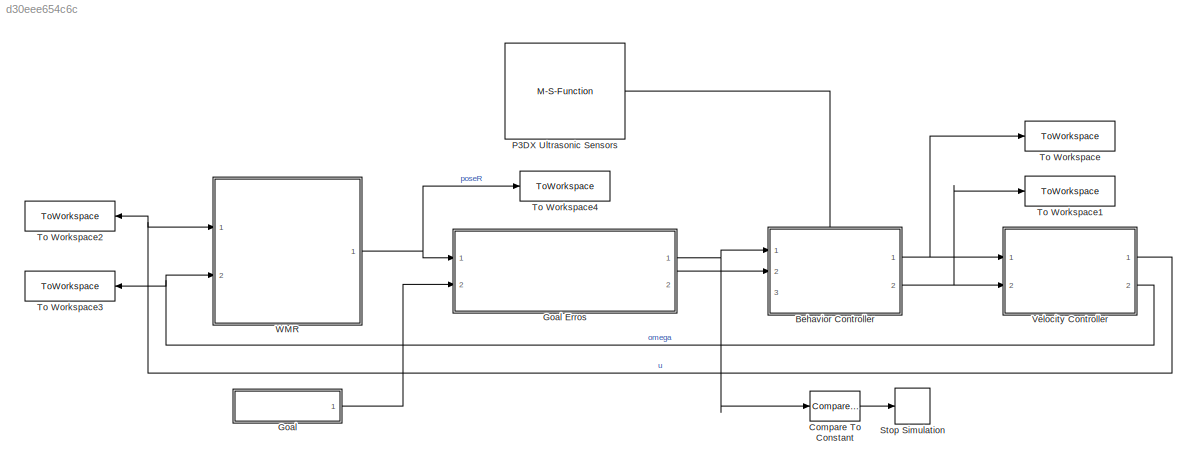
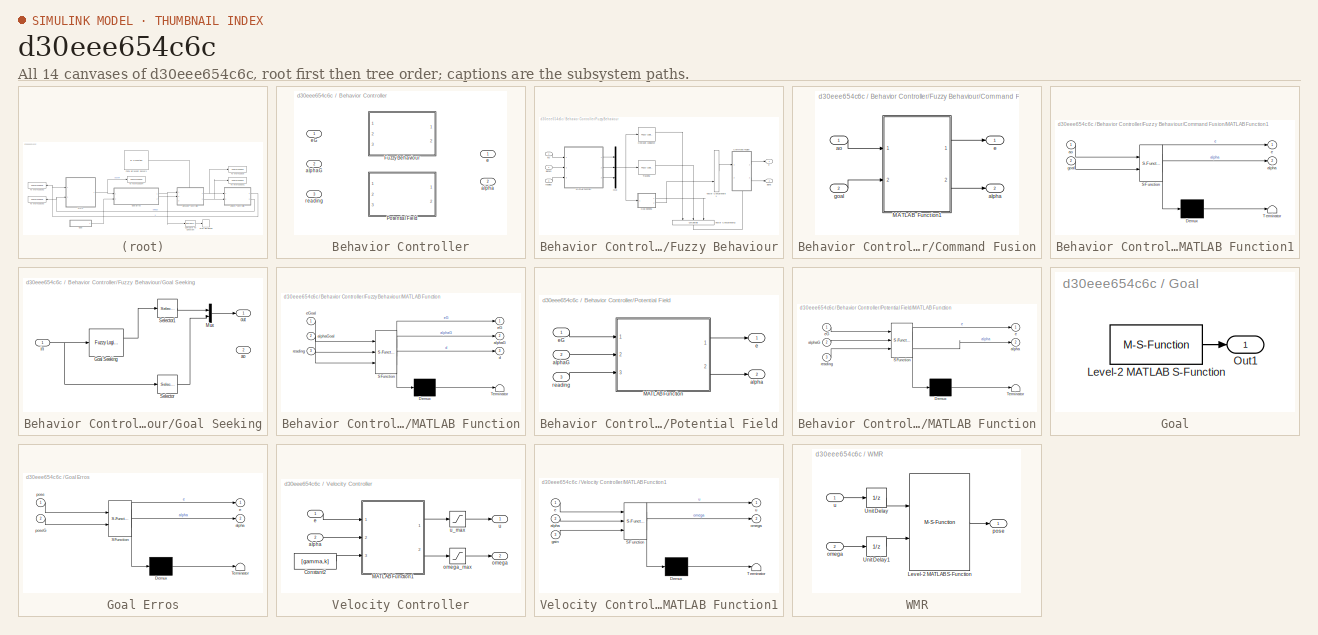
[diagram: thumbnail index - all 14 canvases of the model, root first then tree order]
MODEL slx_d30eee654c6c
KIND model
CONFIG AbsTol = auto
CONFIG EnableMultiTasking = off
CONFIG FixedStep = 5e-3
CONFIG MaxStep = auto
CONFIG MinStep = auto
CONFIG RelTol = 1e-3
CONFIG SampleTimeConstraint = Unconstrained
CONFIG SolverName = FixedStepDiscrete
CONFIG StartTime = 0.0
CONFIG StopTime = Inf
BLOCK [SubSystem] Behavior Controller
  PortSchema = {"entries":[{"content":{"sides":[{"content":{"connectorIds":["In1","In2"]},"type":"ConnectorPlacement.EquallySpacedRectSide","uuid":"3ac4bfbb-f67e-40e5-be56-837f7924ef98"},{"content":{"connectorIds":["Out1","Out2"],"side":"RIGHT"},"type":"ConnectorPlacement.EquallySpacedRectSide","uuid":"0946b3c7-0d10-45c4-bd05-6547f8b5d1ad"},{"content":{"connectorIds":["In3"],"side":"TOP"},"type":"ConnectorPlacem...<+258ch>
  Ports = [3, 2]
  RequestExecContextInheritance = off
  Variant = on
BLOCK [SubSystem] Behavior Controller/Fuzzy Behaviour
  PortSchema = {"entries":[{"content":{"sides":[{"content":{"connectorIds":["In1","In2"]},"type":"ConnectorPlacement.EquallySpacedRectSide","uuid":"06a7f3f5-19ad-4266-b822-3ab888d38f4d"},{"content":{"connectorIds":["Out1","Out2"],"side":"RIGHT"},"type":"ConnectorPlacement.EquallySpacedRectSide","uuid":"a9a64b0c-d306-4cfa-a00f-170269f42e3e"},{"content":{"connectorIds":["In3"],"side":"TOP"},"type":"ConnectorPlacem...<+258ch>
  Ports = [3, 2]
  RequestExecContextInheritance = off
  VariantControl = FUZZY
BLOCK [SubSystem] Behavior Controller/Fuzzy Behaviour/Command Fusion
  NameLocation = top
  PortSchema = {"entries":[{"content":{"sides":[{"content":{"connectorIds":["In1"]},"type":"ConnectorPlacement.EquallySpacedRectSide","uuid":"73fd97c8-3045-4cbb-bad3-62703d9c5625"},{"content":{"connectorIds":["Out1","Out2"],"side":"RIGHT"},"type":"ConnectorPlacement.EquallySpacedRectSide","uuid":"597553a6-e8ee-4dcc-95be-8e7ec85d134a"},{"content":{"connectorIds":[],"side":"TOP"},"type":"ConnectorPlacement.Equally...<+396ch>
  Ports = [2, 2]
  RequestExecContextInheritance = off
BLOCK [SubSystem] Behavior Controller/Fuzzy Behaviour/Command Fusion/MATLAB Function1
  ErrorFcn = Stateflow.Translate.translate
  PermitHierarchicalResolution = ExplicitOnly
  Ports = [2, 2]
  RequestExecContextInheritance = off
  SFBlockType = MATLAB Function
  TreatAsAtomicUnit = on
BLOCK [Demux] Behavior Controller/Fuzzy Behaviour/Command Fusion/MATLAB Function1/ Demux 
  Outputs = 1
  Ports = [1, 1]
BLOCK [S-Function] Behavior Controller/Fuzzy Behaviour/Command Fusion/MATLAB Function1/ SFunction 
  EnableBusSupport = on
  FunctionName = sf_sfun
  PortCounts = [2 3]
  Ports = [2, 3]
  SFcnIsStateOwnerBlock = off
  SFunctionDeploymentMode = off
  Tag = Stateflow S-Function 4
BLOCK [Terminator] Behavior Controller/Fuzzy Behaviour/Command Fusion/MATLAB Function1/ Terminator 
BLOCK [Outport] Behavior Controller/Fuzzy Behaviour/Command Fusion/MATLAB Function1/alpha
  Port = 2
BLOCK [Inport] Behavior Controller/Fuzzy Behaviour/Command Fusion/MATLAB Function1/ao
BLOCK [Outport] Behavior Controller/Fuzzy Behaviour/Command Fusion/MATLAB Function1/e
BLOCK [Inport] Behavior Controller/Fuzzy Behaviour/Command Fusion/MATLAB Function1/goal
  Port = 2
BLOCK [Outport] Behavior Controller/Fuzzy Behaviour/Command Fusion/alpha
  Port = 2
BLOCK [Inport] Behavior Controller/Fuzzy Behaviour/Command Fusion/ao
BLOCK [Outport] Behavior Controller/Fuzzy Behaviour/Command Fusion/e
BLOCK [Inport] Behavior Controller/Fuzzy Behaviour/Command Fusion/goal
  Port = 2
BLOCK [SubSystem] Behavior Controller/Fuzzy Behaviour/Goal Seeking
  Ports = [1, 2]
  RequestExecContextInheritance = off
BLOCK [Reference] Behavior Controller/Fuzzy Behaviour/Goal Seeking/Goal Seeking  REF=fuzblock/Fuzzy Logic   (lib defined in mdl_858b3b3e7478)
Controller
  Ports = [1, 2]
  SourceBlock = fuzblock/Fuzzy Logic \nController
  SourceProductBaseCode = FL
  SourceType = Fuzzy Inference System
BLOCK [Mux] Behavior Controller/Fuzzy Behaviour/Goal Seeking/Mux
  DisplayOption = bar
  Inputs = 2
  Ports = [2, 1]
BLOCK [Selector] Behavior Controller/Fuzzy Behaviour/Goal Seeking/Selector
  IndexOptions = Index vector (dialog)
  Indices = [2]
  InputPortWidth = 5
  OutputSizes = 1
  Ports = [1, 1]
BLOCK [Selector] Behavior Controller/Fuzzy Behaviour/Goal Seeking/Selector1
  IndexOptions = Index vector (dialog)
  Indices = [1]
  InputPortWidth = 2
  OutputSizes = 1
  Ports = [1, 1]
BLOCK [Outport] Behavior Controller/Fuzzy Behaviour/Goal Seeking/ao
  Port = 2
BLOCK [Inport] Behavior Controller/Fuzzy Behaviour/Goal Seeking/in
BLOCK [Outport] Behavior Controller/Fuzzy Behaviour/Goal Seeking/out
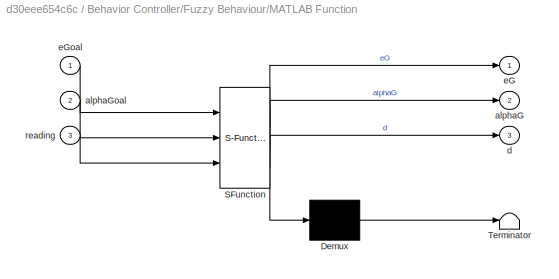
BLOCK [SubSystem] Behavior Controller/Fuzzy Behaviour/MATLAB Function
  ErrorFcn = Stateflow.Translate.translate
  PermitHierarchicalResolution = ExplicitOnly
  Ports = [3, 3]
  RequestExecContextInheritance = off
  SFBlockType = MATLAB Function
  TreatAsAtomicUnit = on
BLOCK [Demux] Behavior Controller/Fuzzy Behaviour/MATLAB Function/ Demux 
  Outputs = 1
  Ports = [1, 1]
BLOCK [S-Function] Behavior Controller/Fuzzy Behaviour/MATLAB Function/ SFunction 
  EnableBusSupport = on
  FunctionName = sf_sfun
  PortCounts = [3 4]
  Ports = [3, 4]
  SFcnIsStateOwnerBlock = off
  SFunctionDeploymentMode = off
  Tag = Stateflow S-Function 1
BLOCK [Terminator] Behavior Controller/Fuzzy Behaviour/MATLAB Function/ Terminator 
BLOCK [Outport] Behavior Controller/Fuzzy Behaviour/MATLAB Function/alphaG
  Port = 2
BLOCK [Inport] Behavior Controller/Fuzzy Behaviour/MATLAB Function/alphaGoal
  Port = 2
BLOCK [Outport] Behavior Controller/Fuzzy Behaviour/MATLAB Function/d
  Port = 3
BLOCK [Outport] Behavior Controller/Fuzzy Behaviour/MATLAB Function/eG
BLOCK [Inport] Behavior Controller/Fuzzy Behaviour/MATLAB Function/eGoal
BLOCK [Inport] Behavior Controller/Fuzzy Behaviour/MATLAB Function/reading
  Port = 3
BLOCK [Mux] Behavior Controller/Fuzzy Behaviour/Mux
  DisplayOption = bar
  Inputs = 3
  Ports = [3, 1]
BLOCK [Reference] Behavior Controller/Fuzzy Behaviour/Obstacle Avoidance  REF=fuzblock/Fuzzy Logic   (lib defined in mdl_858b3b3e7478)
Controller
  Ports = [1, 2]
  SourceBlock = fuzblock/Fuzzy Logic \nController
  SourceProductBaseCode = FL
  SourceType = Fuzzy Inference System
BLOCK [Reference] Behavior Controller/Fuzzy Behaviour/Tracking  REF=fuzblock/Fuzzy Logic   (lib defined in mdl_858b3b3e7478)
Controller
  Ports = [1, 2]
  SourceBlock = fuzblock/Fuzzy Logic \nController
  SourceProductBaseCode = FL
  SourceType = Fuzzy Inference System
BLOCK [Concatenate] Behavior Controller/Fuzzy Behaviour/Vector Concatenate1
  ConcatenateDimension = 2
  Mode = Multidimensional array
  NumInputs = 3
  Ports = [3, 1]
BLOCK [Concatenate] Behavior Controller/Fuzzy Behaviour/Vector Concatenate2
  ConcatenateDimension = 2
  Mode = Multidimensional array
  NameLocation = left
  NumInputs = 3
  Ports = [3, 1]
BLOCK [Outport] Behavior Controller/Fuzzy Behaviour/alpha
  Port = 2
BLOCK [Inport] Behavior Controller/Fuzzy Behaviour/alphaG
  Port = 2
BLOCK [Outport] Behavior Controller/Fuzzy Behaviour/e
BLOCK [Inport] Behavior Controller/Fuzzy Behaviour/eG
BLOCK [Inport] Behavior Controller/Fuzzy Behaviour/reading
  Port = 3
BLOCK [SubSystem] Behavior Controller/Potential Field
  PortSchema = {"entries":[{"content":{"sides":[{"content":{"connectorIds":["In1","In2"]},"type":"ConnectorPlacement.EquallySpacedRectSide","uuid":"06a7f3f5-19ad-4266-b822-3ab888d38f4d"},{"content":{"connectorIds":["Out1","Out2"],"side":"RIGHT"},"type":"ConnectorPlacement.EquallySpacedRectSide","uuid":"a9a64b0c-d306-4cfa-a00f-170269f42e3e"},{"content":{"connectorIds":["In3"],"side":"TOP"},"type":"ConnectorPlacem...<+258ch>
  Ports = [3, 2]
  RequestExecContextInheritance = off
  VariantControl = POTENTIAL
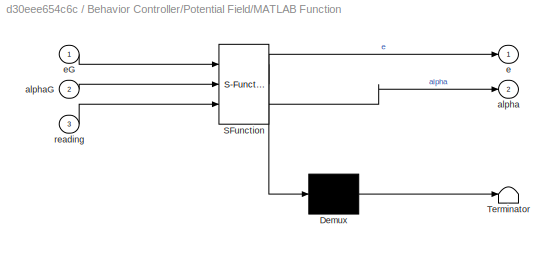
BLOCK [SubSystem] Behavior Controller/Potential Field/MATLAB Function
  ErrorFcn = Stateflow.Translate.translate
  PermitHierarchicalResolution = ExplicitOnly
  Ports = [3, 2]
  RequestExecContextInheritance = off
  SFBlockType = MATLAB Function
  TreatAsAtomicUnit = on
BLOCK [Demux] Behavior Controller/Potential Field/MATLAB Function/ Demux 
  Outputs = 1
  Ports = [1, 1]
BLOCK [S-Function] Behavior Controller/Potential Field/MATLAB Function/ SFunction 
  EnableBusSupport = on
  FunctionName = sf_sfun
  PortCounts = [3 3]
  Ports = [3, 3]
  SFcnIsStateOwnerBlock = off
  SFunctionDeploymentMode = off
  Tag = Stateflow S-Function 5
BLOCK [Terminator] Behavior Controller/Potential Field/MATLAB Function/ Terminator 
BLOCK [Outport] Behavior Controller/Potential Field/MATLAB Function/alpha
  Port = 2
BLOCK [Inport] Behavior Controller/Potential Field/MATLAB Function/alphaG
  Port = 2
BLOCK [Outport] Behavior Controller/Potential Field/MATLAB Function/e
BLOCK [Inport] Behavior Controller/Potential Field/MATLAB Function/eG
BLOCK [Inport] Behavior Controller/Potential Field/MATLAB Function/reading
  Port = 3
BLOCK [Outport] Behavior Controller/Potential Field/alpha
  Port = 2
BLOCK [Inport] Behavior Controller/Potential Field/alphaG
  Port = 2
BLOCK [Outport] Behavior Controller/Potential Field/e
BLOCK [Inport] Behavior Controller/Potential Field/eG
BLOCK [Inport] Behavior Controller/Potential Field/reading
  Port = 3
BLOCK [Outport] Behavior Controller/alpha
  Port = 2
BLOCK [Inport] Behavior Controller/alphaG
  Port = 2
BLOCK [Outport] Behavior Controller/e
BLOCK [Inport] Behavior Controller/eG
BLOCK [Inport] Behavior Controller/reading
  Port = 3
BLOCK [Reference] Compare To Constant  REF=simulink/Logic and Bit
Operations/Compare
To Constant
  Ports = [1, 1]
  SourceBlock = simulink/Logic and Bit\nOperations/Compare\nTo Constant
  SourceProductBaseCode = SL
  SourceType = Compare To Constant
BLOCK [SubSystem] Goal
  Ports = [0, 1]
  RequestExecContextInheritance = off
  VariantControl = GOAL_COPPELIA
BLOCK [SubSystem] Goal Erros
  ErrorFcn = Stateflow.Translate.translate
  PermitHierarchicalResolution = ExplicitOnly
  Ports = [2, 2]
  RequestExecContextInheritance = off
  SFBlockType = MATLAB Function
  TreatAsAtomicUnit = on
BLOCK [Demux] Goal Erros/ Demux 
  Outputs = 1
  Ports = [1, 1]
BLOCK [S-Function] Goal Erros/ SFunction 
  EnableBusSupport = on
  FunctionName = sf_sfun
  PortCounts = [2 3]
  Ports = [2, 3]
  SFcnIsStateOwnerBlock = off
  SFunctionDeploymentMode = off
  Tag = Stateflow S-Function 2
BLOCK [Terminator] Goal Erros/ Terminator 
BLOCK [Outport] Goal Erros/alpha
  Port = 2
BLOCK [Outport] Goal Erros/e
BLOCK [Inport] Goal Erros/pose
BLOCK [Inport] Goal Erros/poseG
  Port = 2
BLOCK [M-S-Function] Goal/Level-2 MATLAB S-Function
  FunctionName = coppeliaGoal
  Ports = [0, 1]
BLOCK [Outport] Goal/Out1
BLOCK [M-S-Function] P3DX Ultrasonic Sensors
  FunctionName = p3dxUltrasonic
  Ports = [0, 1]
BLOCK [Stop] Stop Simulation
BLOCK [ToWorkspace] To Workspace
  FixptAsFi = on
  MaxDataPoints = inf
  Ports = [1]
  SampleTime = -1
  SaveFormat = Timeseries
  VariableName = e
BLOCK [ToWorkspace] To Workspace1
  FixptAsFi = on
  MaxDataPoints = inf
  Ports = [1]
  SampleTime = -1
  SaveFormat = Timeseries
  VariableName = alpha
BLOCK [ToWorkspace] To Workspace2
  FixptAsFi = on
  MaxDataPoints = inf
  Ports = [1]
  SampleTime = -1
  SaveFormat = Timeseries
  VariableName = u
BLOCK [ToWorkspace] To Workspace3
  FixptAsFi = on
  MaxDataPoints = inf
  Ports = [1]
  SampleTime = -1
  SaveFormat = Timeseries
  VariableName = omega
BLOCK [ToWorkspace] To Workspace4
  FixptAsFi = on
  MaxDataPoints = inf
  Ports = [1]
  SampleTime = -1
  SaveFormat = Timeseries
  VariableName = poseR
BLOCK [SubSystem] Velocity Controller
  Ports = [2, 2]
  RequestExecContextInheritance = off
BLOCK [Constant] Velocity Controller/Constant2
  Value = [gamma,k]
BLOCK [SubSystem] Velocity Controller/MATLAB Function1
  ErrorFcn = Stateflow.Translate.translate
  PermitHierarchicalResolution = ExplicitOnly
  Ports = [3, 2]
  RequestExecContextInheritance = off
  SFBlockType = MATLAB Function
  TreatAsAtomicUnit = on
BLOCK [Demux] Velocity Controller/MATLAB Function1/ Demux 
  Outputs = 1
  Ports = [1, 1]
BLOCK [S-Function] Velocity Controller/MATLAB Function1/ SFunction 
  EnableBusSupport = on
  FunctionName = sf_sfun
  PortCounts = [3 3]
  Ports = [3, 3]
  SFcnIsStateOwnerBlock = off
  SFunctionDeploymentMode = off
  Tag = Stateflow S-Function 3
BLOCK [Terminator] Velocity Controller/MATLAB Function1/ Terminator 
BLOCK [Inport] Velocity Controller/MATLAB Function1/alpha
  Port = 2
BLOCK [Inport] Velocity Controller/MATLAB Function1/e
BLOCK [Inport] Velocity Controller/MATLAB Function1/gain
  Port = 3
BLOCK [Outport] Velocity Controller/MATLAB Function1/omega
  Port = 2
BLOCK [Outport] Velocity Controller/MATLAB Function1/u
BLOCK [Inport] Velocity Controller/alpha
  Port = 2
BLOCK [Inport] Velocity Controller/e
BLOCK [Outport] Velocity Controller/omega
  Port = 2
BLOCK [Saturate] Velocity Controller/omega_max
  LowerLimit = -omega_max
  UpperLimit = omega_max
BLOCK [Outport] Velocity Controller/u
BLOCK [Saturate] Velocity Controller/u_max
  LowerLimit = -u_max
  UpperLimit = u_max
BLOCK [SubSystem] WMR
  Ports = [2, 1]
  RequestExecContextInheritance = off
  VariantControl = UNICYCLE_COPPELIA
BLOCK [M-S-Function] WMR/Level-2 MATLAB S-Function
  FunctionName = coppeliaScene
  Ports = [2, 1]
BLOCK [UnitDelay] WMR/Unit Delay
  HasFrameUpgradeWarning = on
  SampleTime = -1
BLOCK [UnitDelay] WMR/Unit Delay1
  HasFrameUpgradeWarning = on
  SampleTime = -1
BLOCK [Inport] WMR/omega
  Port = 2
BLOCK [Outport] WMR/pose
BLOCK [Inport] WMR/u
LINE Behavior Controller/Fuzzy Behaviour/Command Fusion/MATLAB Function1:1 -> Behavior Controller/Fuzzy Behaviour/Command Fusion/e:1
LINE Behavior Controller/Fuzzy Behaviour/Command Fusion/MATLAB Function1:2 -> Behavior Controller/Fuzzy Behaviour/Command Fusion/alpha:1
LINE Behavior Controller/Fuzzy Behaviour/Command Fusion/ao:1 -> Behavior Controller/Fuzzy Behaviour/Command Fusion/MATLAB Function1:1
LINE Behavior Controller/Fuzzy Behaviour/Command Fusion/goal:1 -> Behavior Controller/Fuzzy Behaviour/Command Fusion/MATLAB Function1:2
LINE Behavior Controller/Fuzzy Behaviour/Command Fusion:1 -> Behavior Controller/Fuzzy Behaviour/e:1
LINE Behavior Controller/Fuzzy Behaviour/Command Fusion:2 -> Behavior Controller/Fuzzy Behaviour/alpha:1
LINE Behavior Controller/Fuzzy Behaviour/Goal Seeking/Goal Seeking:1 -> Behavior Controller/Fuzzy Behaviour/Goal Seeking/Selector1:1
LINE Behavior Controller/Fuzzy Behaviour/Goal Seeking/Mux:1 -> Behavior Controller/Fuzzy Behaviour/Goal Seeking/out:1
LINE Behavior Controller/Fuzzy Behaviour/Goal Seeking/Selector1:1 -> Behavior Controller/Fuzzy Behaviour/Goal Seeking/Mux:1
LINE Behavior Controller/Fuzzy Behaviour/Goal Seeking/Selector:1 -> Behavior Controller/Fuzzy Behaviour/Goal Seeking/Mux:2
NET Behavior Controller/Fuzzy Behaviour/Goal Seeking/in:1 -> Behavior Controller/Fuzzy Behaviour/Goal Seeking/Goal Seeking:1, Behavior Controller/Fuzzy Behaviour/Goal Seeking/Selector:1
LINE Behavior Controller/Fuzzy Behaviour/Goal Seeking:1 -> Behavior Controller/Fuzzy Behaviour/Vector Concatenate2:3
LINE Behavior Controller/Fuzzy Behaviour/Goal Seeking:2 -> Behavior Controller/Fuzzy Behaviour/Vector Concatenate1:3
LINE Behavior Controller/Fuzzy Behaviour/MATLAB Function:1 -> Behavior Controller/Fuzzy Behaviour/Mux:1
LINE Behavior Controller/Fuzzy Behaviour/MATLAB Function:2 -> Behavior Controller/Fuzzy Behaviour/Mux:2
LINE Behavior Controller/Fuzzy Behaviour/MATLAB Function:3 -> Behavior Controller/Fuzzy Behaviour/Mux:3
NET Behavior Controller/Fuzzy Behaviour/Mux:1 -> Behavior Controller/Fuzzy Behaviour/Goal Seeking:1, Behavior Controller/Fuzzy Behaviour/Obstacle Avoidance:1, Behavior Controller/Fuzzy Behaviour/Tracking:1
LINE Behavior Controller/Fuzzy Behaviour/Obstacle Avoidance:1 -> Behavior Controller/Fuzzy Behaviour/Vector Concatenate2:1
LINE Behavior Controller/Fuzzy Behaviour/Tracking:1 -> Behavior Controller/Fuzzy Behaviour/Vector Concatenate2:2
LINE Behavior Controller/Fuzzy Behaviour/Vector Concatenate1:1 -> Behavior Controller/Fuzzy Behaviour/Command Fusion:1
LINE Behavior Controller/Fuzzy Behaviour/Vector Concatenate2:1 -> Behavior Controller/Fuzzy Behaviour/Command Fusion:2
LINE Behavior Controller/Fuzzy Behaviour/alphaG:1 -> Behavior Controller/Fuzzy Behaviour/MATLAB Function:2
LINE Behavior Controller/Fuzzy Behaviour/eG:1 -> Behavior Controller/Fuzzy Behaviour/MATLAB Function:1
LINE Behavior Controller/Fuzzy Behaviour/reading:1 -> Behavior Controller/Fuzzy Behaviour/MATLAB Function:3
LINE Behavior Controller/Potential Field/MATLAB Function:1 -> Behavior Controller/Potential Field/e:1
LINE Behavior Controller/Potential Field/MATLAB Function:2 -> Behavior Controller/Potential Field/alpha:1
LINE Behavior Controller/Potential Field/alphaG:1 -> Behavior Controller/Potential Field/MATLAB Function:2
LINE Behavior Controller/Potential Field/eG:1 -> Behavior Controller/Potential Field/MATLAB Function:1
LINE Behavior Controller/Potential Field/reading:1 -> Behavior Controller/Potential Field/MATLAB Function:3
NET Behavior Controller:1 -> To Workspace:1, Velocity Controller:1
NET Behavior Controller:2 -> To Workspace1:1, Velocity Controller:2
LINE Compare To Constant:1 -> Stop Simulation:1
NET Goal Erros:1 -> Behavior Controller:1, Compare To Constant:1
LINE Goal Erros:2 -> Behavior Controller:2
LINE Goal/Level-2 MATLAB S-Function:1 -> Goal/Out1:1
LINE Goal:1 -> Goal Erros:2
LINE P3DX Ultrasonic Sensors:1 -> Behavior Controller:3
LINE Velocity Controller/Constant2:1 -> Velocity Controller/MATLAB Function1:3
LINE Velocity Controller/MATLAB Function1:1 -> Velocity Controller/u_max:1
LINE Velocity Controller/MATLAB Function1:2 -> Velocity Controller/omega_max:1
LINE Velocity Controller/alpha:1 -> Velocity Controller/MATLAB Function1:2
LINE Velocity Controller/e:1 -> Velocity Controller/MATLAB Function1:1
LINE Velocity Controller/omega_max:1 -> Velocity Controller/omega:1
LINE Velocity Controller/u_max:1 -> Velocity Controller/u:1
NET Velocity Controller:1 -> To Workspace2:1, WMR:1
NET Velocity Controller:2 -> To Workspace3:1, WMR:2
LINE WMR/Level-2 MATLAB S-Function:1 -> WMR/pose:1
LINE WMR/Unit Delay1:1 -> WMR/Level-2 MATLAB S-Function:2
LINE WMR/Unit Delay:1 -> WMR/Level-2 MATLAB S-Function:1
LINE WMR/omega:1 -> WMR/Unit Delay1:1
LINE WMR/u:1 -> WMR/Unit Delay:1
NET WMR:1 -> Goal Erros:1, To Workspace4:1
note: NET lines group one-source signal fan-out (src -> all destinations, sorted); 1:1 wires keep LINE
CHART Behavior Controller/Fuzzy Behaviour/MATLAB Function states=1 transitions=1
  STATE_LABEL 'eML_blk_kernel()'
  STATE_LABEL 'SCRIPT:\nfunction [eG,alphaG,d] = inputGen(eGoal,alphaGoal,reading)\n\nidx = [[3 4 5 6];[7 8 9 7];[2 1 16 2]];\n\nd = zeros(1,3); r = zeros(1,4);\nfor i = 1:3\n    r = reading(idx(i,:))/2;\n    d(i) = min(r);\nend\neG = min(eGoal,3);\nalphaG = alphaGoal;\n'
CHART Goal Erros states=1 transitions=1
  STATE_LABEL 'eML_blk_kernel()'
  STATE_LABEL 'SCRIPT:\nfunction [e,alpha] = errors(pose,poseG)\n\ndeltaX = poseG(1)-pose(1); deltaY = poseG(2)-pose(2);\nphi = pose(3);\n\ne = sqrt(deltaX^2 + deltaY^2);\nalpha = atan2(deltaY,deltaX) - phi;\n\nif alpha < -pi\n    alpha = alpha + 2*pi;\nelseif alpha >= pi\n    alpha = alpha - 2*pi;\nend\n'
CHART Velocity Controller/MATLAB Function1 states=1 transitions=1
  STATE_LABEL 'eML_blk_kernel()'
  STATE_LABEL 'SCRIPT:\nfunction [u,omega] = control(e,alpha,gain)\n\ngamma = gain(1); k = gain(2);\n\nu = gamma*e*cos(alpha);\nomega = k*alpha + gamma*cos(alpha)*sin(alpha);\n'
CHART Behavior Controller/Fuzzy Behaviour/Command Fusion/MATLAB Function1 states=1 transitions=1
  STATE_LABEL 'eML_blk_kernel()'
  STATE_LABEL "SCRIPT:\nfunction [e,alpha] = commandFusion(ao,goal)\n\ncoder.extrinsic('plotV');\ncoder.extrinsic('paretto');\n\nw = paretto(max(ao(:,1:2:(end-1)),ao(:,2:2:end)))\n\ne = 0; alpha = 0;\ne       = goal(1,:)*w'/sum(w);\nalpha   = goal(2,:)*w'/sum(w);\n\nplotV([[e;alpha],goal]);"
CHART Behavior Controller/Potential Field/MATLAB Function states=1 transitions=1
  STATE_LABEL 'eML_blk_kernel()'
  STATE_LABEL 'SCRIPT:\nfunction [e,alpha] = fieldForce(eG,alphaG,reading)\n\nd = zeros(1,8); d = reading(1:8);\ndir = (pi/180)*[90,50,30,10,-10,-30,-50,-90] + pi;\n\nfo = complex(zeros(1,8));\nfor i = 1:8\n    if d(i) < 2\n        fo(i) = (1/d(i)-1/2)*(1/d(i)^2)*exp(1j*dir(i));\n    else\n        fo(i) = 0;\n    end\nend\nFo = sum(fo); e = 3;\nFt = eG + sqrt(Fo);\n\nif min(d) > eG\n    Fo = 0; e = eG; Ft = 0;\nend\nFg = eG*exp(1j*...<+45ch>'
CHART  states=0 transitions=0
CHART  states=0 transitions=0
CHART  states=0 transitions=0
CHART  states=0 transitions=0
CHART  states=0 transitions=0
